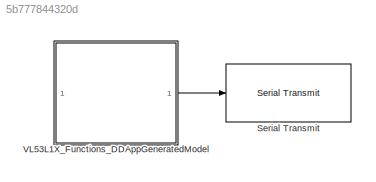
MODEL slx_5b777844320d
KIND model
CONFIG AbsTol = auto
CONFIG EnableMultiTasking = on
CONFIG FixedStep = auto
CONFIG MaxStep = auto
CONFIG MinStep = auto
CONFIG RelTol = 1e-3
CONFIG SampleTimeConstraint = Unconstrained
CONFIG SolverName = FixedStepAuto
CONFIG StartTime = 0.0
CONFIG StopTime = inf
BLOCK [Reference] Serial Transmit  REF=arduinolib/Serial Transmit
  SourceBlock = arduinolib/Serial Transmit
  SourceType = Arduino Serial Transmit
BLOCK [ModelReference] VL53L1X_Functions_DDAppGeneratedModel
  ModelNameDialog = VL53L1X_Functions_DDAppGeneratedModel.slx
  ModelReferenceVersion = 1.8
LINE VL53L1X_Functions_DDAppGeneratedModel:1 -> Serial Transmit:1
